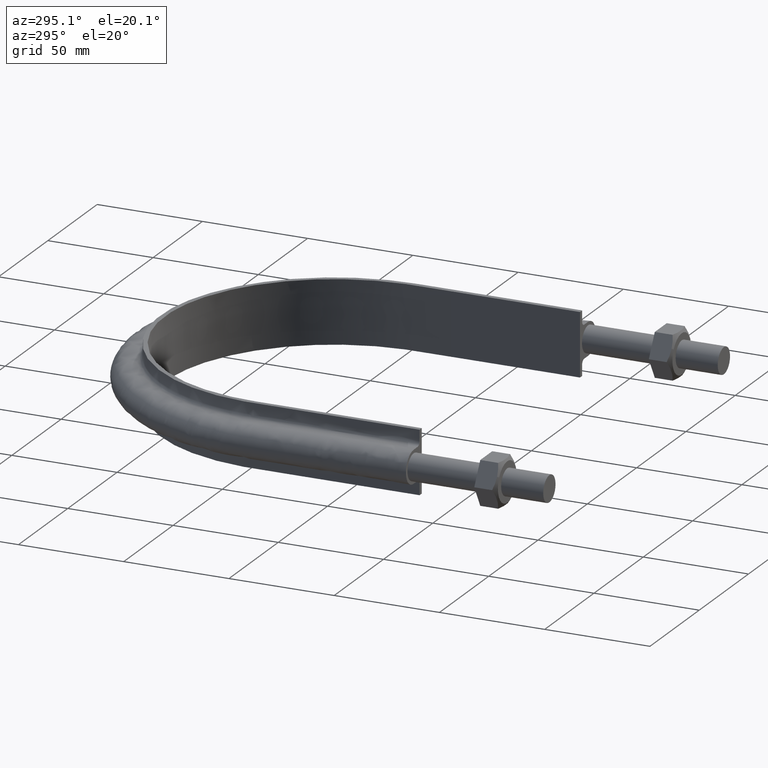
[diagram: clean part render]
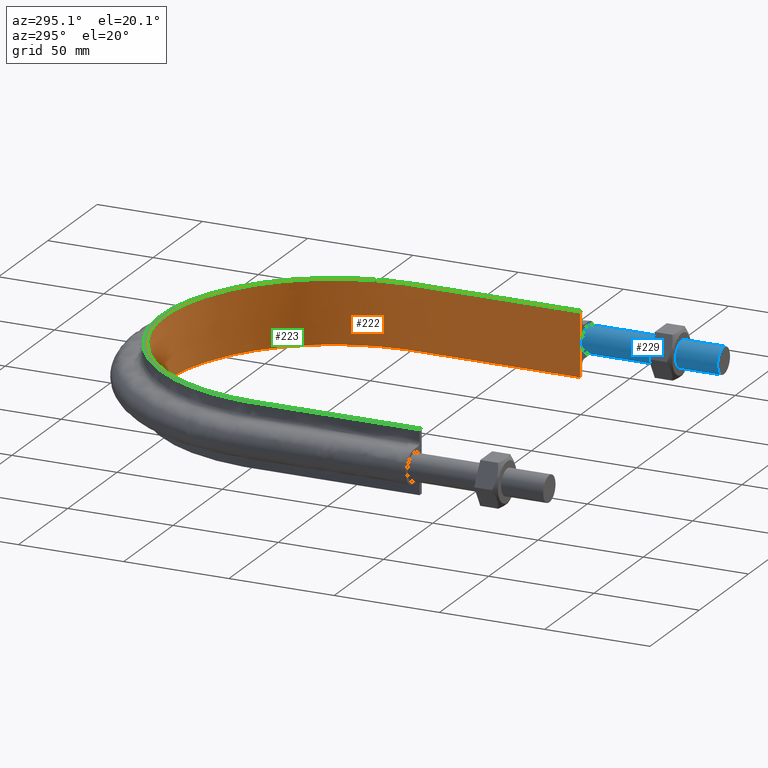
[diagram: same view with three faces highlighted in distinct colors, each labeled with its STEP entity id]
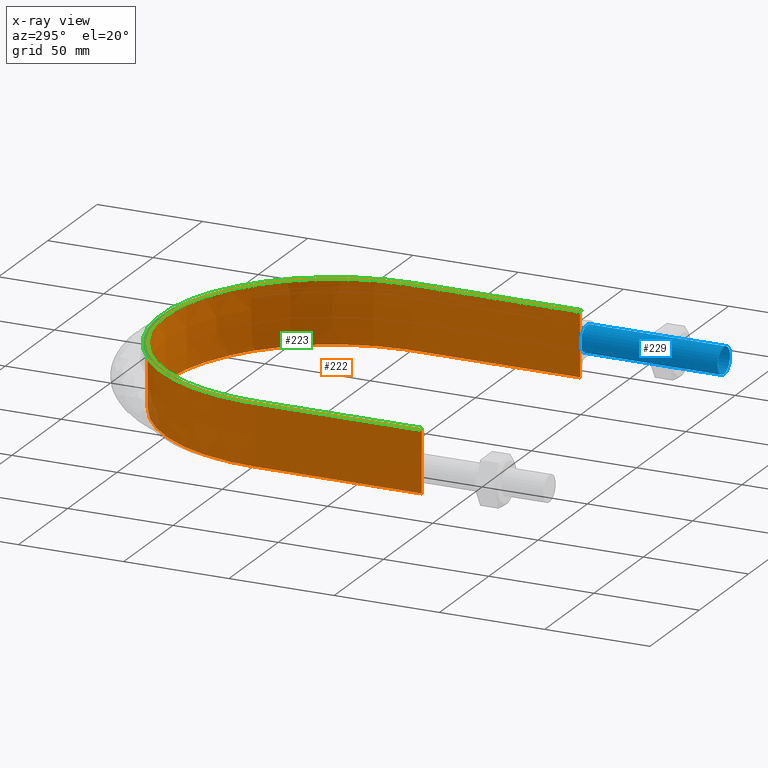
[diagram: x-ray of the same camera — body ghosted, the three highlighted faces saturated]
A machine part, auxiliary view with three faces highlighted in distinct colors.
The next image is the same camera in x-ray (body ghosted, the three faces saturated) — at least one of them is partly hidden behind the body in this view.
Their STEP definitions:

[orange] entity #222 — the highlighted face is a SurfaceOfExtrusion surface.
#222 = ADVANCED_FACE( '', ( #266 ), #267, .T. );
#266 = FACE_OUTER_BOUND( '', #362, .T. );
#267 = SURFACE_OF_LINEAR_EXTRUSION( '', #363, #364 );
#362 = EDGE_LOOP( '', ( #1381, #1382, #1383, #1384 ) );
#363 = B_SPLINE_CURVE_WITH_KNOTS( '', 3, ( #1385, #1386, #1387, #1388, #1389, #1390, #1391, #1392, #1393, #1394, #1395, #1396, #1397, #1398, #1399, #1400, #1401, #1402 ), .UNSPECIFIED., .F., .F., ( 4, 3, 1, 1, 1, 1, 1, 1, 1, 1, 3, 4 ), ( -9.00000000000000, -8.00000000000000, -7.50000000000000, -7.00000000000000, -6.00000000000000, -5.00000000000000, -4.00000000000000, -3.00000000000000, -2.00000000000000, -1.50000000000000, -1.00000000000000, 0.000000000000000 ), .UNSPECIFIED. );
#364 = VECTOR( '', #1403, 1000.00000000000 );
#1381 = ORIENTED_EDGE( '', *, *, #1623, .F. );
#1382 = ORIENTED_EDGE( '', *, *, #1612, .F. );
#1383 = ORIENTED_EDGE( '', *, *, #1616, .T. );
#1384 = ORIENTED_EDGE( '', *, *, #1620, .T. );
#1385 = CARTESIAN_POINT( '', ( -80.2500000000000, 64.5000000000001, -270.018143165184 ) );
#1386 = CARTESIAN_POINT( '', ( -80.2500000000000, 90.9200000000001, -270.018143165184 ) );
#1387 = CARTESIAN_POINT( '', ( -80.2500000000000, 117.340000000000, -270.018143165184 ) );
#1388 = CARTESIAN_POINT( '', ( -80.2500000000000, 143.760000000000, -270.018143165184 ) );
#1389 = CARTESIAN_POINT( '', ( -80.2500000000000, 149.750586735035, -270.018143165184 ) );
#1390 = CARTESIAN_POINT( '', ( -78.8786264043398, 161.768376163953, -270.018143165184 ) );
#1391 = CARTESIAN_POINT( '', ( -70.9339277239971, 184.577888193896, -270.018143165184 ) );
#1392 = CARTESIAN_POINT( '', ( -51.7427931998640, 208.644676397937, -270.018143165184 ) );
#1393 = CARTESIAN_POINT( '', ( -18.4670121667006, 224.668622663522, -270.018143165184 ) );
#1394 = CARTESIAN_POINT( '', ( 18.4670121667005, 224.668622663522, -270.018143165184 ) );
#1395 = CARTESIAN_POINT( '', ( 51.7427931998639, 208.644676397937, -270.018143165184 ) );
#1396 = CARTESIAN_POINT( '', ( 70.9339277239970, 184.577888193896, -270.018143165184 ) );
#1397 = CARTESIAN_POINT( '', ( 78.8786264043398, 161.768376163953, -270.018143165184 ) );
#1398 = CARTESIAN_POINT( '', ( 80.2500000000000, 149.750586735035, -270.018143165184 ) );
#1399 = CARTESIAN_POINT( '', ( 80.2499999999999, 143.760000000000, -270.018143165184 ) );
#1400 = CARTESIAN_POINT( '', ( 80.2499999999999, 117.340000000000, -270.018143165184 ) );
#1401 = CARTESIAN_POINT( '', ( 80.2499999999999, 90.9200000000000, -270.018143165184 ) );
#1402 = CARTESIAN_POINT( '', ( 80.2499999999999, 64.5000000000000, -270.018143165184 ) );
#1403 = DIRECTION( '', ( 0.000000000000000, 0.000000000000000, 1.00000000000000 ) );
#1612 = EDGE_CURVE( '', #1679, #1680, #1681, .T. );
#1616 = EDGE_CURVE( '', #1679, #1687, #1688, .T. );
#1620 = EDGE_CURVE( '', #1687, #1694, #1695, .T. );
#1623 = EDGE_CURVE( '', #1680, #1694, #1699, .T. );
#1679 = VERTEX_POINT( '', #1805 );
#1680 = VERTEX_POINT( '', #1806 );
#1681 = LINE( '', #1807, #1808 );
#1687 = VERTEX_POINT( '', #1846 );
#1688 = B_SPLINE_CURVE_WITH_KNOTS( '', 3, ( #1847, #1848, #1849, #1850, #1851, #1852, #1853, #1854, #1855, #1856, #1857, #1858, #1859, #1860, #1861, #1862, #1863, #1864 ), .UNSPECIFIED., .F., .F., ( 4, 3, 1, 1, 1, 1, 1, 1, 1, 1, 3, 4 ), ( -9.00000000000000, -8.00000000000000, -7.50000000000000, -7.00000000000000, -6.00000000000000, -5.00000000000000, -4.00000000000000, -3.00000000000000, -2.00000000000000, -1.50000000000000, -1.00000000000000, 0.000000000000000 ), .UNSPECIFIED. );
#1694 = VERTEX_POINT( '', #1898 );
#1695 = LINE( '', #1899, #1900 );
#1699 = B_SPLINE_CURVE_WITH_KNOTS( '', 3, ( #1935, #1936, #1937, #1938, #1939, #1940, #1941, #1942, #1943, #1944, #1945, #1946, #1947, #1948, #1949, #1950, #1951, #1952 ), .UNSPECIFIED., .F., .F., ( 4, 3, 1, 1, 1, 1, 1, 1, 1, 1, 3, 4 ), ( -9.00000000000000, -8.00000000000000, -7.50000000000000, -7.00000000000000, -6.00000000000000, -5.00000000000000, -4.00000000000000, -3.00000000000000, -2.00000000000000, -1.50000000000000, -1.00000000000000, 0.000000000000000 ), .UNSPECIFIED. );
#1805 = CARTESIAN_POINT( '', ( -80.2499999999999, 64.5000000000003, -15.0000000000000 ) );
#1806 = CARTESIAN_POINT( '', ( -80.2499999999999, 64.5000000000003, 15.0000000000000 ) );
#1807 = CARTESIAN_POINT( '', ( -80.2500000000000, 64.5000000000001, -270.018143165184 ) );
#1808 = VECTOR( '', #2239, 1000.00000000000 );
#1846 = CARTESIAN_POINT( '', ( 80.2499999999999, 64.5000000000000, -15.0000000000002 ) );
#1847 = CARTESIAN_POINT( '', ( -80.2500000000000, 64.5000000000001, -15.0000000000001 ) );
#1848 = CARTESIAN_POINT( '', ( -80.2500000000000, 90.9200000000001, -15.0000000000001 ) );
#1849 = CARTESIAN_POINT( '', ( -80.2500000000000, 117.340000000000, -15.0000000000001 ) );
#1850 = CARTESIAN_POINT( '', ( -80.2500000000000, 143.760000000000, -15.0000000000001 ) );
#1851 = CARTESIAN_POINT( '', ( -80.2500000000000, 149.750586735035, -15.0000000000001 ) );
#1852 = CARTESIAN_POINT( '', ( -78.8786264043398, 161.768376163953, -15.0000000000001 ) );
#1853 = CARTESIAN_POINT( '', ( -70.9339277239971, 184.577888193896, -15.0000000000001 ) );
#1854 = CARTESIAN_POINT( '', ( -51.7427931998640, 208.644676397937, -15.0000000000001 ) );
#1855 = CARTESIAN_POINT( '', ( -18.4670121667006, 224.668622663522, -15.0000000000001 ) );
#1856 = CARTESIAN_POINT( '', ( 18.4670121667005, 224.668622663522, -15.0000000000001 ) );
#1857 = CARTESIAN_POINT( '', ( 51.7427931998639, 208.644676397937, -15.0000000000001 ) );
#1858 = CARTESIAN_POINT( '', ( 70.9339277239970, 184.577888193896, -15.0000000000001 ) );
#1859 = CARTESIAN_POINT( '', ( 78.8786264043398, 161.768376163953, -15.0000000000001 ) );
#1860 = CARTESIAN_POINT( '', ( 80.2500000000000, 149.750586735035, -15.0000000000001 ) );
#1861 = CARTESIAN_POINT( '', ( 80.2499999999999, 143.760000000000, -15.0000000000001 ) );
#1862 = CARTESIAN_POINT( '', ( 80.2499999999999, 117.340000000000, -15.0000000000001 ) );
#1863 = CARTESIAN_POINT( '', ( 80.2499999999999, 90.9200000000000, -15.0000000000001 ) );
#1864 = CARTESIAN_POINT( '', ( 80.2499999999999, 64.5000000000000, -15.0000000000001 ) );
#1898 = CARTESIAN_POINT( '', ( 80.2500000000001, 64.5000000000003, 15.0000000000000 ) );
#1899 = CARTESIAN_POINT( '', ( 80.2499999999999, 64.5000000000000, -270.018143165184 ) );
#1900 = VECTOR( '', #2243, 1000.00000000000 );
#1935 = CARTESIAN_POINT( '', ( -80.2500000000000, 64.5000000000001, 14.9999999999999 ) );
#1936 = CARTESIAN_POINT( '', ( -80.2500000000000, 90.9200000000001, 14.9999999999999 ) );
#1937 = CARTESIAN_POINT( '', ( -80.2500000000000, 117.340000000000, 14.9999999999999 ) );
#1938 = CARTESIAN_POINT( '', ( -80.2500000000000, 143.760000000000, 14.9999999999999 ) );
#1939 = CARTESIAN_POINT( '', ( -80.2500000000000, 149.750586735035, 14.9999999999999 ) );
#1940 = CARTESIAN_POINT( '', ( -78.8786264043398, 161.768376163953, 14.9999999999999 ) );
#1941 = CARTESIAN_POINT( '', ( -70.9339277239971, 184.577888193896, 14.9999999999999 ) );
#1942 = CARTESIAN_POINT( '', ( -51.7427931998640, 208.644676397937, 14.9999999999999 ) );
#1943 = CARTESIAN_POINT( '', ( -18.4670121667006, 224.668622663522, 14.9999999999999 ) );
#1944 = CARTESIAN_POINT( '', ( 18.4670121667005, 224.668622663522, 14.9999999999999 ) );
#1945 = CARTESIAN_POINT( '', ( 51.7427931998639, 208.644676397937, 14.9999999999999 ) );
#1946 = CARTESIAN_POINT( '', ( 70.9339277239970, 184.577888193896, 14.9999999999999 ) );
#1947 = CARTESIAN_POINT( '', ( 78.8786264043398, 161.768376163953, 14.9999999999999 ) );
#1948 = CARTESIAN_POINT( '', ( 80.2500000000000, 149.750586735035, 14.9999999999999 ) );
#1949 = CARTESIAN_POINT( '', ( 80.2499999999999, 143.760000000000, 14.9999999999999 ) );
#1950 = CARTESIAN_POINT( '', ( 80.2499999999999, 117.340000000000, 14.9999999999999 ) );
#1951 = CARTESIAN_POINT( '', ( 80.2499999999999, 90.9200000000000, 14.9999999999999 ) );
#1952 = CARTESIAN_POINT( '', ( 80.2499999999999, 64.5000000000000, 14.9999999999999 ) );
#2239 = DIRECTION( '', ( 0.000000000000000, 0.000000000000000, 1.00000000000000 ) );
#2243 = DIRECTION( '', ( 0.000000000000000, 0.000000000000000, 1.00000000000000 ) );

[blue] entity #229 — the highlighted cylindrical surface (bore or boss wall) has radius 6.25 mm, axis along (0, 1, -0).
#229 = ADVANCED_FACE( '', ( #283, #284 ), #285, .T. );
#283 = FACE_OUTER_BOUND( '', #1287, .T. );
#284 = FACE_OUTER_BOUND( '', #1288, .T. );
#285 = CYLINDRICAL_SURFACE( '', #1289, 6.25000000000001 );
#1287 = EDGE_LOOP( '', ( #1428 ) );
#1288 = EDGE_LOOP( '', ( #1429 ) );
#1289 = AXIS2_PLACEMENT_3D( '', #1430, #1431, #1432 );
#1428 = ORIENTED_EDGE( '', *, *, #1627, .T. );
#1429 = ORIENTED_EDGE( '', *, *, #1628, .F. );
#1430 = CARTESIAN_POINT( '', ( 88.5000000000000, 65.0000000000000, -1.98998532496136E-014 ) );
#1431 = DIRECTION( '', ( 2.44921270764476E-016, 1.00000000000000, -3.06151588455594E-016 ) );
#1432 = DIRECTION( '', ( 1.00000000000000, -2.44921270764475E-016, 0.000000000000000 ) );
#1627 = EDGE_CURVE( '', #1705, #1705, #1706, .T. );
#1628 = EDGE_CURVE( '', #1707, #1707, #1708, .T. );
#1705 = VERTEX_POINT( '', #1995 );
#1706 = CIRCLE( '', #1996, 6.25000000000001 );
#1707 = VERTEX_POINT( '', #1997 );
#1708 = CIRCLE( '', #1998, 6.25000000000001 );
#1995 = CARTESIAN_POINT( '', ( 94.7500000000000, 65.0000000000000, -1.98998532496136E-014 ) );
#1996 = AXIS2_PLACEMENT_3D( '', #2245, #2246, #2247 );
#1997 = CARTESIAN_POINT( '', ( 94.7500000000000, -2.32062904049340E-014, 0.000000000000000 ) );
#1998 = AXIS2_PLACEMENT_3D( '', #2248, #2249, #2250 );
#2245 = CARTESIAN_POINT( '', ( 88.5000000000000, 65.0000000000000, -1.98998532496136E-014 ) );
#2246 = DIRECTION( '', ( -2.44921270764475E-016, -1.00000000000000, 3.06151588455594E-016 ) );
#2247 = DIRECTION( '', ( 1.00000000000000, -2.44921270764475E-016, -7.54721935012283E-047 ) );
#2248 = CARTESIAN_POINT( '', ( 88.5000000000000, -2.16755324626561E-014, 4.71701209382677E-046 ) );
#2249 = DIRECTION( '', ( -2.44921270764475E-016, -1.00000000000000, 3.06151588455594E-016 ) );
#2250 = DIRECTION( '', ( 1.00000000000000, -2.44921270764475E-016, -7.54721935012283E-047 ) );

[green] entity #223 — the highlighted planar face has unit normal (0, 0, 1).
#223 = ADVANCED_FACE( '', ( #268 ), #269, .T. );
#268 = FACE_OUTER_BOUND( '', #365, .T. );
#269 = PLANE( '', #366 );
#365 = EDGE_LOOP( '', ( #1404, #1405, #1406, #1407 ) );
#366 = AXIS2_PLACEMENT_3D( '', #1408, #1409, #1410 );
#1404 = ORIENTED_EDGE( '', *, *, #1613, .T. );
#1405 = ORIENTED_EDGE( '', *, *, #1623, .T. );
#1406 = ORIENTED_EDGE( '', *, *, #1622, .T. );
#1407 = ORIENTED_EDGE( '', *, *, #1624, .F. );
#1408 = CARTESIAN_POINT( '', ( 150.000000000000, 364.500000000000, 15.0000000000000 ) );
#1409 = DIRECTION( '', ( 0.000000000000000, 0.000000000000000, 1.00000000000000 ) );
#1410 = DIRECTION( '', ( 1.22460635382238E-016, 1.00000000000000, 0.000000000000000 ) );
#1613 = EDGE_CURVE( '', #1682, #1680, #1683, .T. );
#1622 = EDGE_CURVE( '', #1694, #1696, #1698, .T. );
#1623 = EDGE_CURVE( '', #1680, #1694, #1699, .T. );
#1624 = EDGE_CURVE( '', #1682, #1696, #1700, .F. );
#1680 = VERTEX_POINT( '', #1806 );
#1682 = VERTEX_POINT( '', #1809 );
#1683 = LINE( '', #1810, #1811 );
#1694 = VERTEX_POINT( '', #1898 );
#1696 = VERTEX_POINT( '', #1901 );
#1698 = LINE( '', #1933, #1934 );
#1699 = B_SPLINE_CURVE_WITH_KNOTS( '', 3, ( #1935, #1936, #1937, #1938, #1939, #1940, #1941, #1942, #1943, #1944, #1945, #1946, #1947, #1948, #1949, #1950, #1951, #1952 ), .UNSPECIFIED., .F., .F., ( 4, 3, 1, 1, 1, 1, 1, 1, 1, 1, 3, 4 ), ( -9.00000000000000, -8.00000000000000, -7.50000000000000, -7.00000000000000, -6.00000000000000, -5.00000000000000, -4.00000000000000, -3.00000000000000, -2.00000000000000, -1.50000000000000, -1.00000000000000, 0.000000000000000 ), .UNSPECIFIED. );
#1700 = B_SPLINE_CURVE_WITH_KNOTS( '', 3, ( #1953, #1954, #1955, #1956, #1957, #1958, #1959, #1960, #1961, #1962, #1963, #1964, #1965, #1966, #1967, #1968, #1969, #1970 ), .UNSPECIFIED., .F., .F., ( 4, 3, 1, 1, 1, 1, 1, 1, 1, 1, 3, 4 ), ( 0.000000000000000, 1.00000000000000, 1.50000000000000, 2.00000000000000, 3.00000000000000, 4.00000000000000, 5.00000000000000, 6.00000000000000, 7.00000000000000, 7.50000000000000, 8.00000000000000, 9.00000000000000 ), .UNSPECIFIED. );
#1806 = CARTESIAN_POINT( '', ( -80.2499999999999, 64.5000000000003, 15.0000000000000 ) );
#1809 = CARTESIAN_POINT( '', ( -82.4499999999999, 64.5000000000003, 15.0000000000000 ) );
#1810 = CARTESIAN_POINT( '', ( -150.000000000000, 64.5000000000003, 15.0000000000000 ) );
#1811 = VECTOR( '', #2240, 1000.00000000000 );
#1898 = CARTESIAN_POINT( '', ( 80.2500000000001, 64.5000000000003, 15.0000000000000 ) );
#1901 = CARTESIAN_POINT( '', ( 82.4500000000002, 64.5000000000003, 15.0000000000000 ) );
#1933 = CARTESIAN_POINT( '', ( -150.000000000000, 64.5000000000003, 15.0000000000000 ) );
#1934 = VECTOR( '', #2244, 1000.00000000000 );
#1935 = CARTESIAN_POINT( '', ( -80.2500000000000, 64.5000000000001, 14.9999999999999 ) );
#1936 = CARTESIAN_POINT( '', ( -80.2500000000000, 90.9200000000001, 14.9999999999999 ) );
#1937 = CARTESIAN_POINT( '', ( -80.2500000000000, 117.340000000000, 14.9999999999999 ) );
#1938 = CARTESIAN_POINT( '', ( -80.2500000000000, 143.760000000000, 14.9999999999999 ) );
#1939 = CARTESIAN_POINT( '', ( -80.2500000000000, 149.750586735035, 14.9999999999999 ) );
#1940 = CARTESIAN_POINT( '', ( -78.8786264043398, 161.768376163953, 14.9999999999999 ) );
#1941 = CARTESIAN_POINT( '', ( -70.9339277239971, 184.577888193896, 14.9999999999999 ) );
#1942 = CARTESIAN_POINT( '', ( -51.7427931998640, 208.644676397937, 14.9999999999999 ) );
#1943 = CARTESIAN_POINT( '', ( -18.4670121667006, 224.668622663522, 14.9999999999999 ) );
#1944 = CARTESIAN_POINT( '', ( 18.4670121667005, 224.668622663522, 14.9999999999999 ) );
#1945 = CARTESIAN_POINT( '', ( 51.7427931998639, 208.644676397937, 14.9999999999999 ) );
#1946 = CARTESIAN_POINT( '', ( 70.9339277239970, 184.577888193896, 14.9999999999999 ) );
#1947 = CARTESIAN_POINT( '', ( 78.8786264043398, 161.768376163953, 14.9999999999999 ) );
#1948 = CARTESIAN_POINT( '', ( 80.2500000000000, 149.750586735035, 14.9999999999999 ) );
#1949 = CARTESIAN_POINT( '', ( 80.2499999999999, 143.760000000000, 14.9999999999999 ) );
#1950 = CARTESIAN_POINT( '', ( 80.2499999999999, 117.340000000000, 14.9999999999999 ) );
#1951 = CARTESIAN_POINT( '', ( 80.2499999999999, 90.9200000000000, 14.9999999999999 ) );
#1952 = CARTESIAN_POINT( '', ( 80.2499999999999, 64.5000000000000, 14.9999999999999 ) );
#1953 = CARTESIAN_POINT( '', ( 82.4500000000000, 64.5000000000000, 15.0000000000000 ) );
#1954 = CARTESIAN_POINT( '', ( 82.4500000000000, 90.9200000000000, 15.0000000000000 ) );
#1955 = CARTESIAN_POINT( '', ( 82.4500000000000, 117.340000000000, 15.0000000000000 ) );
#1956 = CARTESIAN_POINT( '', ( 82.4500000000000, 143.760000000000, 15.0000000000000 ) );
#1957 = CARTESIAN_POINT( '', ( 82.4500000000000, 149.917965282921, 15.0000000000000 ) );
#1958 = CARTESIAN_POINT( '', ( 81.0415063471974, 162.260747551918, 15.0000000000000 ) );
#1959 = CARTESIAN_POINT( '', ( 72.8782592641098, 185.697642595927, 15.0000000000000 ) );
#1960 = CARTESIAN_POINT( '', ( 53.1613822653425, 210.423193230709, 15.0000000000000 ) );
#1961 = CARTESIAN_POINT( '', ( 18.9732412542822, 226.886728985128, 15.0000000000000 ) );
#1962 = CARTESIAN_POINT( '', ( -18.9732412542821, 226.886728985128, 15.0000000000000 ) );
#1963 = CARTESIAN_POINT( '', ( -53.1613822653425, 210.423193230709, 15.0000000000000 ) );
#1964 = CARTESIAN_POINT( '', ( -72.8782592641097, 185.697642595926, 15.0000000000000 ) );
#1965 = CARTESIAN_POINT( '', ( -81.0415063471973, 162.260747551918, 15.0000000000000 ) );
#1966 = CARTESIAN_POINT( '', ( -82.4500000000000, 149.917965282921, 15.0000000000000 ) );
#1967 = CARTESIAN_POINT( '', ( -82.4500000000000, 143.760000000000, 15.0000000000000 ) );
#1968 = CARTESIAN_POINT( '', ( -82.4500000000000, 117.340000000000, 15.0000000000000 ) );
#1969 = CARTESIAN_POINT( '', ( -82.4500000000000, 90.9200000000000, 15.0000000000000 ) );
#1970 = CARTESIAN_POINT( '', ( -82.4500000000000, 64.5000000000001, 15.0000000000000 ) );
#2240 = DIRECTION( '', ( 1.00000000000000, -1.22460635382238E-016, 0.000000000000000 ) );
#2244 = DIRECTION( '', ( 1.00000000000000, -1.22460635382238E-016, 0.000000000000000 ) );